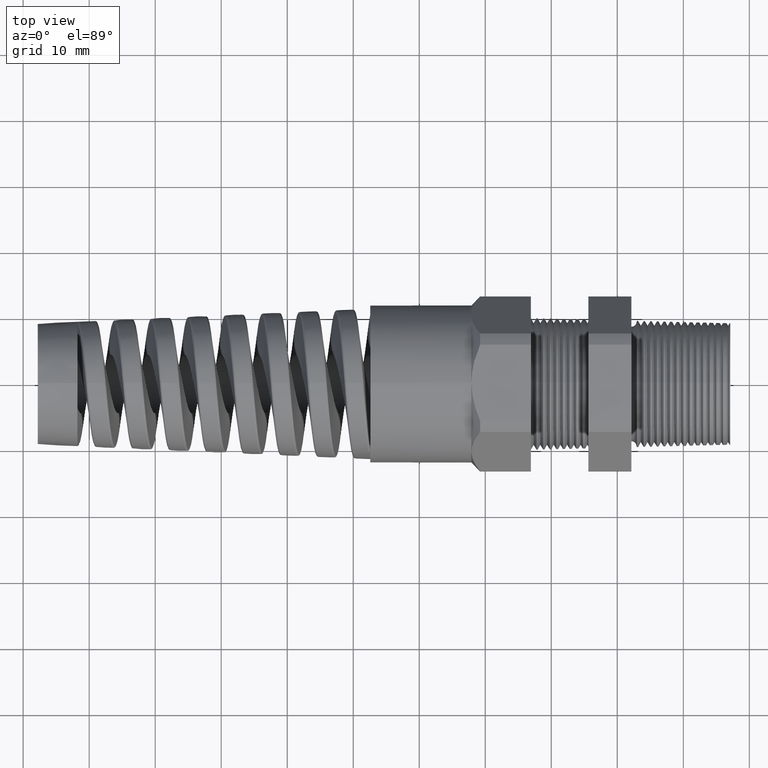
[diagram: clean part render]
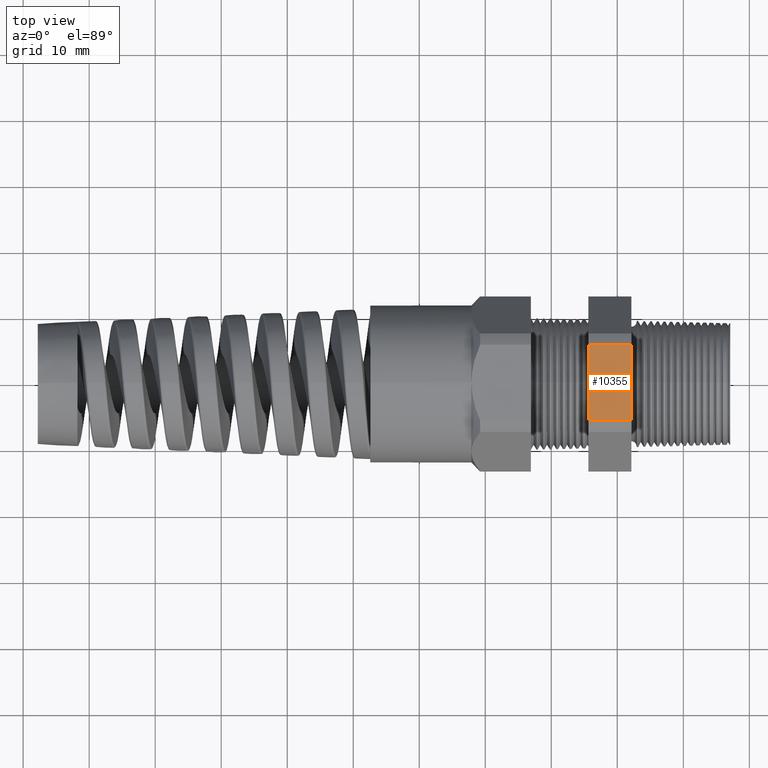
[diagram: same view with one face highlighted and labeled with its STEP entity id]
A machine part, top view. The second image highlights one B-rep face of the part: STEP entity #10355.
In plain terms, the highlighted planar face has unit normal (0, 0, 1).
Its self-contained STEP definition (entity closure, byte-faithful):
#3000 = DIRECTION ( 'NONE',  ( -1.000000000000000000, 0.0000000000000000000, 0.0000000000000000000 ) ) ;
#3001 = VECTOR ( 'NONE', #3000, 39.37007874015748100 ) ;
#3002 = CARTESIAN_POINT ( 'NONE',  ( 0.2800000000000000300, -0.2264307620443835600, 0.4699999999999997500 ) ) ;
#3003 = LINE ( 'NONE', #3002, #3001 ) ;
#3031 = CARTESIAN_POINT ( 'NONE',  ( -0.5659055118110235500, -0.2264307620443835600, 0.4699999999999997500 ) ) ;
#3032 = CARTESIAN_POINT ( 'NONE',  ( -0.5659055118110235500, 0.2264307620443832800, 0.4699999999999999200 ) ) ;
#3038 = DIRECTION ( 'NONE',  ( -1.000000000000000000, 0.0000000000000000000, 0.0000000000000000000 ) ) ;
#3039 = VECTOR ( 'NONE', #3038, 39.37007874015748100 ) ;
#3040 = CARTESIAN_POINT ( 'NONE',  ( 0.2800000000000000300, 0.2264307620443832800, 0.4699999999999999200 ) ) ;
#3045 = LINE ( 'NONE', #3040, #3039 ) ;
#3084 = DIRECTION ( 'NONE',  ( 1.000000000000000000, 0.0000000000000000000, 0.0000000000000000000 ) ) ;
#3085 = DIRECTION ( 'NONE',  ( 0.0000000000000000000, 0.0000000000000000000, 1.000000000000000000 ) ) ;
#3086 = CARTESIAN_POINT ( 'NONE',  ( 0.2800000000000000300, -0.2264307620443832800, 0.4699999999999999200 ) ) ;
#3087 = AXIS2_PLACEMENT_3D ( 'NONE', #3086, #3085, #3084 ) ;
#3088 = PLANE ( 'NONE',  #3087 ) ;
#3089 = FACE_OUTER_BOUND ( 'NONE', #10157, .T. ) ;
#3090 = DIRECTION ( 'NONE',  ( 0.0000000000000000000, 1.000000000000000000, 0.0000000000000000000 ) ) ;
#3091 = VECTOR ( 'NONE', #3090, 39.37007874015748100 ) ;
#3092 = CARTESIAN_POINT ( 'NONE',  ( -0.5659055118110234400, 0.9399999999999999500, 0.4699999999999999200 ) ) ;
#3093 = LINE ( 'NONE', #3092, #3091 ) ;
#3430 = DIRECTION ( 'NONE',  ( 0.0000000000000000000, -1.000000000000000000, 0.0000000000000000000 ) ) ;
#3431 = VECTOR ( 'NONE', #3430, 39.37007874015748100 ) ;
#3432 = CARTESIAN_POINT ( 'NONE',  ( -0.3100000000000000000, 0.9399999999999999500, 0.4699999999999999200 ) ) ;
#3433 = LINE ( 'NONE', #3432, #3431 ) ;
#3434 = CARTESIAN_POINT ( 'NONE',  ( -0.3100000000000000000, 0.2264307620443832800, 0.4699999999999999200 ) ) ;
#3440 = CARTESIAN_POINT ( 'NONE',  ( -0.3100000000000000000, -0.2264307620443835600, 0.4699999999999997500 ) ) ;
#9688 = EDGE_CURVE ( 'NONE', #16449, #10302, #3003, .T. ) ;
#10109 = EDGE_CURVE ( 'NONE', #16453, #10222, #3045, .T. ) ;
#10157 = EDGE_LOOP ( 'NONE', ( #10286, #10269, #10352, #10191 ) ) ;
#10191 = ORIENTED_EDGE ( 'NONE', *, *, #10313, .F. ) ;
#10222 = VERTEX_POINT ( 'NONE', #3032 ) ;
#10269 = ORIENTED_EDGE ( 'NONE', *, *, #16454, .F. ) ;
#10286 = ORIENTED_EDGE ( 'NONE', *, *, #9688, .F. ) ;
#10302 = VERTEX_POINT ( 'NONE', #3031 ) ;
#10313 = EDGE_CURVE ( 'NONE', #10302, #10222, #3093, .T. ) ;
#10352 = ORIENTED_EDGE ( 'NONE', *, *, #10109, .T. ) ;
#10355 = ADVANCED_FACE ( 'NONE', ( #3089 ), #3088, .T. ) ;
#16449 = VERTEX_POINT ( 'NONE', #3440 ) ;
#16453 = VERTEX_POINT ( 'NONE', #3434 ) ;
#16454 = EDGE_CURVE ( 'NONE', #16453, #16449, #3433, .T. ) ;